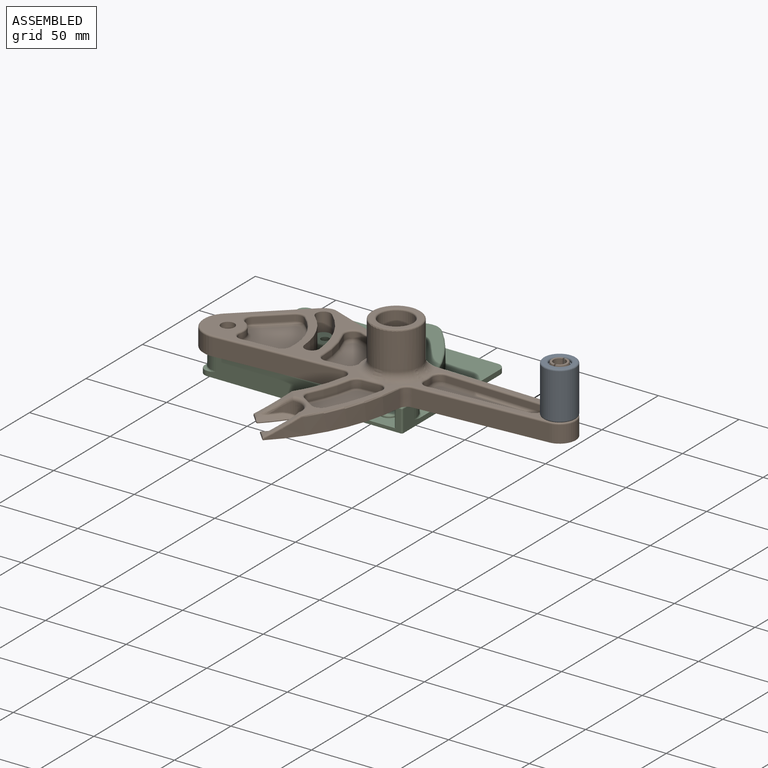
[diagram: assembled view]
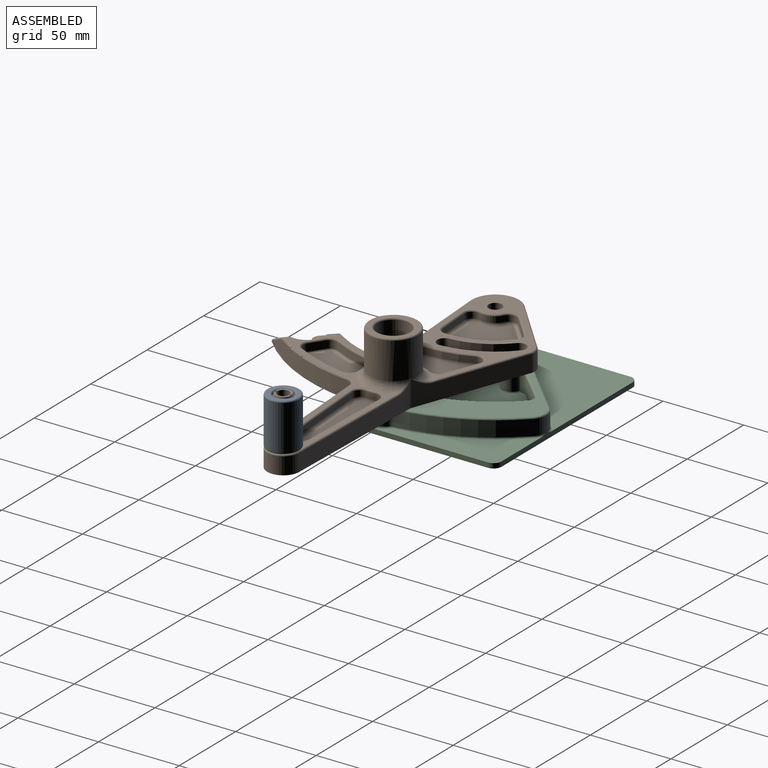
[diagram: assembled view, second angle]
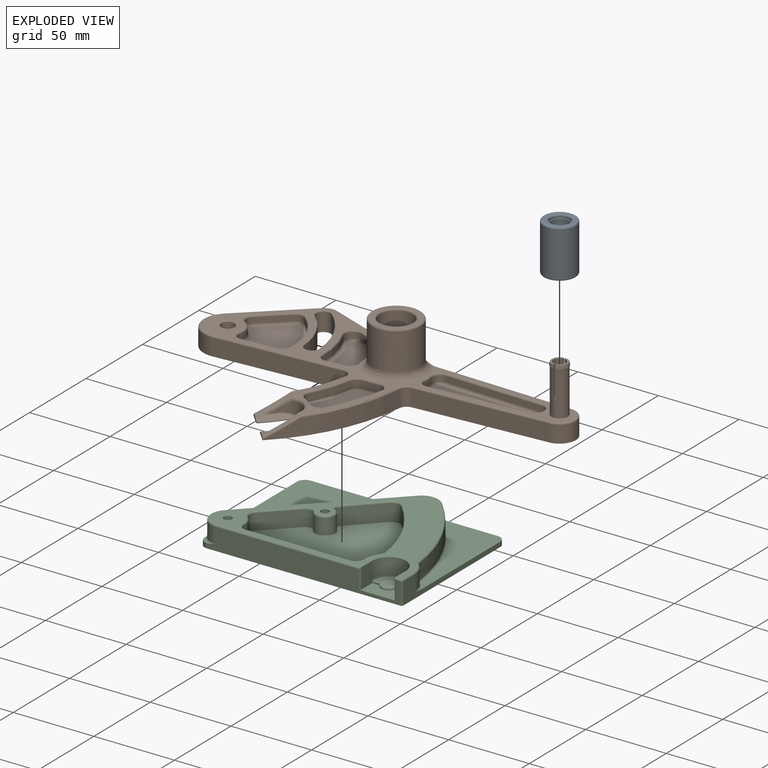
[diagram: exploded view]
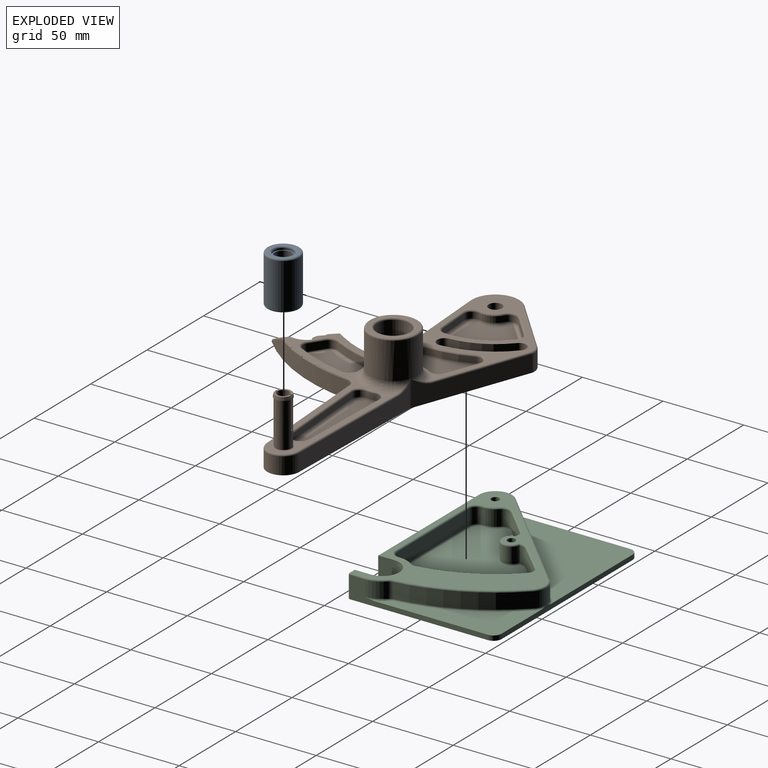
[diagram: exploded view, second angle]
ASSEMBLY  parts=3 mates=4
PART A: 10 faces, bbox 21.6x21.6x30 mm
  f0: cylinder r=5.35mm len=26.5mm, axis (0,0,-1), area 890.8mm2, adj f5,f9
  f1: cylinder r=10mm len=28mm, axis (0,0,-1), area 1759.3mm2, adj f7,f8
  f2: plane 18x18mm, normal (0,0,1), area 100.5mm2, adj f6,f8
  f3: plane 18x18mm, normal (0,0,-1), area 107.1mm2, adj f7,f9
  f4: cylinder r=6mm len=12mm, axis (0,0,1), area 37.7mm2, adj f5,f6
  f5: plane 12x12mm, normal (0,0,1), area 23.2mm2, adj f0,f4
  f6: torus R=7mm, axis (0,0,1), area 62.8mm2, adj f2,f4
  f7: torus R=9mm, axis (0,0,1), area 95.1mm2, adj f1,f3
  f8: torus R=9mm, axis (0,0,1), area 95.1mm2, adj f1,f2
  f9: cone r=6.85mm half-angle=45deg, axis (0,0,-1), area 81.3mm2, adj f0,f3
PART B: 214 faces, bbox 227.1x135.7x43.3 mm
  f0: plane 3.06x2.01mm, normal (0,0,1), area 1.7mm2, adj f171,f200,f201
  f1: plane 107.76x101.36mm, normal (0,0,1), area 1793.9mm2, adj f21,f22,f23,f26,f27,f67,f68,f69
  f2: plane 0.79x0.61mm, normal (-0.61,-0.79,0), area 0.5mm2, adj f5,f6,f28,f198
  f3: cylinder r=94.5mm len=10.51mm, axis (0,0,-1), area 7.4mm2, adj f6,f28,f196,f212
  f4: cylinder r=105.5mm len=11.87mm, axis (0,0,-1), area 8.4mm2, adj f5,f28,f200,f213
  f5: cylinder r=5mm len=7.2mm, axis (0,0,-1), area 4.1mm2, adj f2,f4,f28,f199
  f6: cylinder r=5mm len=6.85mm, axis (0,0,-1), area 3.8mm2, adj f2,f3,f28,f197
  f7: plane 7.97x6.12mm, normal (0.61,0.79,0), area 45.2mm2, adj f131,f134,f140,f150
  f8: cylinder r=90mm len=23.28mm, axis (0,0,-1), area 114.5mm2, adj f131,f132,f141,f147
  f9: plane 10.33x4.5mm, normal (0,-1,0), area 46.5mm2, adj f132,f133,f137,f143
  f10: cylinder r=110mm len=32.16mm, axis (0,0,-1), area 157.8mm2, adj f133,f134,f136,f146
  f11: plane 77.46x10.5mm, normal (0,-1,0), area 813.3mm2, adj f18,f28,f183,f194
  f12: cylinder r=5mm len=27.46mm, axis (0,0,-1), area 827.2mm2, adj f109,f110,f113,f115,f117,f120,f121,f123
  f13: plane 6.5x6.5mm, normal (0,0,1), area 33.2mm2, adj f118,f119
  f14: plane 127.49x84.87mm, normal (0,0,1), area 916.6mm2, adj f100,f101,f102,f104,f105,f106,f107,f121
  f15: plane 68.13x30.64mm, normal (0.41,0.91,0), area 811mm2, adj f16,f28,f108,f165,f166
  f16: cylinder r=9.5mm len=10.5mm, axis (0,0,-1), area 95.5mm2, adj f15,f17,f28,f167
  f17: plane 38.22x30.56mm, normal (-0.62,0.78,0), area 513.8mm2, adj f16,f18,f28,f168
  f18: cylinder r=15mm len=26.71mm, axis (0,0,-1), area 388.6mm2, adj f11,f17,f28,f195
  f19: plane 81.68x10.5mm, normal (0,-1,0), area 857.6mm2, adj f20,f28,f182,f188
  f20: cylinder r=10mm len=19.96mm, axis (0,0,-1), area 320.4mm2, adj f19,f25,f28,f189
  f21: cylinder r=4.5mm len=11.5mm, axis (0,0,-1), area 163.4mm2, adj f1,f22,f26,f28
  f22: cylinder r=45.5mm len=32.13mm, axis (0,0,-1), area 410.2mm2, adj f1,f21,f23,f28
  f23: cylinder r=4.5mm len=11.5mm, axis (0,0,-1), area 163.3mm2, adj f1,f22,f26,f28
  f24: cylinder r=10.25mm len=39mm, axis (0,0,-1), area 2511.7mm2, adj f28,f31
  f25: plane 93.92x14.43mm, normal (0.09,1,0), area 1002mm2, adj f20,f28,f108,f162,f163
  f26: cylinder r=54.5mm len=38.47mm, axis (0,0,-1), area 491.5mm2, adj f1,f21,f23,f28
  f27: cylinder r=4.15mm len=11.5mm, axis (0,0,-1), area 299.9mm2, adj f1,f28
  f28: plane 225x132.95mm, normal (0,0,-1), area 8819.7mm2, adj f2,f3,f4,f5,f6,f11,f15,f16
  f29: cylinder r=15mm len=30mm, axis (0,0,-1), area 2122.6mm2, adj f32,f151,f152,f153,f154,f155,f156,f157
  f30: plane 28x28mm, normal (0,0,1), area 218.1mm2, adj f31,f32
  f31: torus R=11.25mm, axis (0,0,1), area 104.7mm2, adj f24,f30
  f32: torus R=14mm, axis (0,0,1), area 144.5mm2, adj f29,f30
  f33: cylinder r=40.5mm len=35.2mm, axis (0,0,1), area 135.7mm2, adj f38,f41,f42,f79
  f34: plane 16.28x13.02mm, normal (0.62,-0.78,0), area 73mm2, adj f38,f39,f46,f75
  f35: cylinder r=10.15mm len=11.95mm, axis (0,0,1), area 47.9mm2, adj f39,f40,f49,f78
  f36: plane 20.85x3.5mm, normal (0,1,0), area 73mm2, adj f40,f41,f45,f82
  f37: plane 36.86x33.45mm, normal (0,0,1), area 869.3mm2, adj f42,f43,f44,f45,f46,f47,f48,f49
  f38: cylinder r=5mm len=6.55mm, axis (0,0,1), area 25mm2, adj f33,f34,f44,f77
  f39: cylinder r=5mm len=8.14mm, axis (0,0,1), area 33.4mm2, adj f34,f35,f48,f76
  f40: cylinder r=5mm len=6.65mm, axis (0,0,1), area 33.4mm2, adj f35,f36,f47,f80
  f41: cylinder r=5mm len=4.95mm, axis (0,0,1), area 25mm2, adj f33,f36,f43,f81
  f42: torus R=38.5mm, axis (0,0,1), area 119.6mm2, adj f33,f37,f43,f44
  f43: torus R=3mm, axis (0,0,1), area 19.2mm2, adj f37,f41,f42,f45
  f44: torus R=3mm, axis (0,0,1), area 19.2mm2, adj f37,f38,f42,f46
  f45: cylinder r=2mm len=20.85mm, axis (1,0,0), area 65.5mm2, adj f36,f37,f43,f47
  f46: cylinder r=2mm len=17.53mm, axis (-0.78,-0.62,0), area 65.5mm2, adj f34,f37,f44,f48
  f47: torus R=3mm, axis (0,0,1), area 25.6mm2, adj f37,f40,f45,f49
  f48: torus R=3mm, axis (0,0,1), area 25.6mm2, adj f37,f39,f46,f49
  f49: torus R=12.15mm, axis (0,0,1), area 46mm2, adj f35,f37,f47,f48
  f50: plane 19.62x8.82mm, normal (-0.41,-0.91,0), area 75.3mm2, adj f55,f58,f59,f67
  f51: cylinder r=59.5mm len=26.23mm, axis (0,0,1), area 93.6mm2, adj f55,f56,f62,f70
  f52: plane 11.2x3.5mm, normal (0,1,0), area 39.2mm2, adj f56,f57,f66,f74
  f53: cylinder r=20mm len=15.69mm, axis (0,0,1), area 57.8mm2, adj f57,f58,f63,f71
  f54: plane 34.43x25.62mm, normal (0,0,1), area 585.9mm2, adj f59,f60,f61,f62,f63,f64,f65,f66
  f55: cylinder r=5mm len=7.05mm, axis (0,0,1), area 41.4mm2, adj f50,f51,f60,f68
  f56: cylinder r=5mm len=5.39mm, axis (0,0,1), area 28.8mm2, adj f51,f52,f64,f72
  f57: cylinder r=5mm len=6mm, axis (0,0,1), area 31mm2, adj f52,f53,f65,f73
  f58: cylinder r=5mm len=7.48mm, axis (0,0,1), area 31mm2, adj f50,f53,f61,f69
  f59: cylinder r=2mm len=20.44mm, axis (-0.91,0.41,0), area 67.6mm2, adj f50,f54,f60,f61
  f60: torus R=3mm, axis (0,0,1), area 31.8mm2, adj f54,f55,f59,f62
  f61: torus R=3mm, axis (0,0,1), area 23.8mm2, adj f54,f58,f59,f63
  f62: torus R=61.5mm, axis (0,0,1), area 85mm2, adj f51,f54,f60,f64
  f63: torus R=22mm, axis (0,0,1), area 53.7mm2, adj f53,f54,f61,f65
  f64: torus R=3mm, axis (0,0,1), area 22.1mm2, adj f54,f56,f62,f66
  f65: torus R=3mm, axis (0,0,1), area 23.8mm2, adj f54,f57,f63,f66
  f66: cylinder r=2mm len=11.2mm, axis (1,0,0), area 35.2mm2, adj f52,f54,f64,f65
  f67: cylinder r=1mm len=20.03mm, axis (0.91,-0.41,0), area 33.8mm2, adj f1,f50,f68,f69
  f68: torus R=6mm, axis (0,0,1), area 19.9mm2, adj f1,f55,f67,f70
  f69: torus R=6mm, axis (0,0,1), area 14.7mm2, adj f1,f58,f67,f71,f154
  f70: torus R=58.5mm, axis (0,0,1), area 41.7mm2, adj f1,f51,f68,f72
  f71: torus R=19mm, axis (0,0,1), area 22.8mm2, adj f53,f69,f73,f152
  f72: torus R=6mm, axis (0,0,1), area 13.9mm2, adj f1,f56,f70,f74
  f73: torus R=6mm, axis (0,0,1), area 14.7mm2, adj f1,f57,f71,f74,f151
  f74: cylinder r=1mm len=11.2mm, axis (-1,0,0), area 17.6mm2, adj f1,f52,f72,f73
  f75: cylinder r=1mm len=16.9mm, axis (0.78,0.62,0), area 32.7mm2, adj f1,f34,f76,f77
  f76: torus R=6mm, axis (0,0,1), area 16.1mm2, adj f1,f39,f75,f78
  f77: torus R=6mm, axis (0,0,1), area 12mm2, adj f1,f38,f75,f79
  f78: torus R=9.15mm, axis (0,0,1), area 20.7mm2, adj f1,f35,f76,f80
  f79: torus R=41.5mm, axis (0,0,1), area 61.4mm2, adj f1,f33,f77,f81
  f80: torus R=6mm, axis (0,0,1), area 16.1mm2, adj f1,f40,f78,f82
  f81: torus R=6mm, axis (0,0,1), area 12mm2, adj f1,f41,f79,f82
  f82: cylinder r=1mm len=20.85mm, axis (-1,0,0), area 32.7mm2, adj f1,f36,f80,f81
  f83: cylinder r=20mm len=5.53mm, axis (0,0,1), area 19.4mm2, adj f88,f91,f95,f103
  f84: plane 60.51x3.5mm, normal (0,1,0), area 211.8mm2, adj f88,f89,f99,f107
  f85: cylinder r=10mm len=3.5mm, axis (0,0,1), area 3.2mm2, adj f89,f90,f96,f104
  f86: plane 60.14x5.54mm, normal (-0.09,-1,0), area 211.4mm2, adj f90,f91,f92,f100
  f87: plane 66.57x12.91mm, normal (0,0,1), area 665.4mm2, adj f92,f93,f94,f95,f96,f97,f98,f99
  f88: cylinder r=5mm len=6mm, axis (0,0,1), area 31mm2, adj f83,f84,f97,f105
  f89: cylinder r=5mm len=5mm, axis (0,0,1), area 27.5mm2, adj f84,f85,f98,f106
  f90: cylinder r=5mm len=5.44mm, axis (0,0,1), area 27.5mm2, adj f85,f86,f94,f102
  f91: cylinder r=5mm len=5.46mm, axis (0,0,1), area 30.4mm2, adj f83,f86,f93,f101
  f92: cylinder r=2mm len=60.32mm, axis (-1,0.09,0), area 189.7mm2, adj f86,f87,f93,f94
  f93: torus R=3mm, axis (0,0,1), area 23.3mm2, adj f87,f91,f92,f95
  f94: torus R=3mm, axis (0,0,1), area 21.1mm2, adj f87,f90,f92,f96
  f95: torus R=22mm, axis (0,0,1), area 18.1mm2, adj f83,f87,f93,f97
  f96: torus R=12mm, axis (0,0,1), area 3.1mm2, adj f85,f87,f94,f98
  f97: torus R=3mm, axis (0,0,1), area 23.8mm2, adj f87,f88,f95,f99
  f98: torus R=3mm, axis (0,0,1), area 21.1mm2, adj f87,f89,f96,f99
  f99: cylinder r=2mm len=60.51mm, axis (1,0,0), area 190.1mm2, adj f84,f87,f97,f98
  f100: cylinder r=1mm len=60.23mm, axis (1,-0.09,0), area 94.9mm2, adj f14,f86,f101,f102
  f101: torus R=6mm, axis (0,0,1), area 14.4mm2, adj f14,f91,f100,f103,f158
  f102: torus R=6mm, axis (0,0,1), area 13.2mm2, adj f14,f90,f100,f104
  f103: torus R=19mm, axis (0,0,1), area 7.7mm2, adj f83,f101,f105,f160
  f104: torus R=9mm, axis (0,0,1), area 1.4mm2, adj f14,f85,f102,f106
  f105: torus R=6mm, axis (0,0,1), area 14.7mm2, adj f14,f88,f103,f107,f161
  f106: torus R=6mm, axis (0,0,1), area 13.2mm2, adj f14,f89,f104,f107
  f107: cylinder r=1mm len=60.51mm, axis (-1,0,0), area 95mm2, adj f14,f84,f105,f106
  f108: cylinder r=5mm len=15.95mm, axis (0,0,-1), area 25.1mm2, adj f15,f25,f28,f164
  f109: plane 19.5x1.65mm, normal (-1,0,0), area 24.9mm2, adj f12,f111,f112,f117,f122,f123
  f110: plane 19.5x1.26mm, normal (-1,0,0), area 24.5mm2, adj f12,f111,f112,f120,f124
  f111: cylinder r=3.75mm len=19.5mm, axis (0,0,-1), area 210.2mm2, adj f109,f110,f112,f119
  f112: plane 9.95x4.5mm, normal (0,0,1), area 15.9mm2, adj f109,f110,f111,f122
  f113: plane 19.5x1.65mm, normal (1,0,0), area 24.9mm2, adj f12,f114,f116,f117,f125,f126
  f114: cylinder r=3.75mm len=19.5mm, axis (0,0,-1), area 210.2mm2, adj f113,f115,f116,f118
  f115: plane 19.5x1.26mm, normal (1,0,0), area 24.5mm2, adj f12,f114,f116,f120,f127
  f116: plane 9.95x4.5mm, normal (0,0,1), area 15.9mm2, adj f113,f114,f115,f125
  f117: cylinder r=0.5mm len=1.75mm, axis (0,1,0), area 2.4mm2, adj f12,f109,f113,f118,f119
  f118: torus R=3.25mm, axis (0,0,1), area 8.4mm2, adj f13,f114,f117,f120
  f119: torus R=3.25mm, axis (0,0,1), area 8.4mm2, adj f13,f111,f117,f120
  f120: cylinder r=0.5mm len=1.75mm, axis (0,1,0), area 2.4mm2, adj f12,f110,f115,f118,f119
  f121: torus R=5.5mm, axis (0,0,1), area 25.6mm2, adj f12,f14
  f122: revolved ~10.73x4.89mm, area 30.6mm2, adj f109,f112,f123,f124
  f123: revolved ~10.73x4.89mm, area 6.1mm2, adj f12,f109,f122,f124
  f124: plane 2.04x0.39mm, normal (-0.98,0.2,0), area 0.4mm2, adj f110,f122,f123
  f125: revolved ~10.73x4.89mm, area 30.6mm2, adj f113,f116,f126,f127
  f126: revolved ~10.73x4.89mm, area 6.1mm2, adj f12,f113,f125,f127
  f127: plane 2.04x0.39mm, normal (0.98,0.2,0), area 0.4mm2, adj f115,f125,f126
  f128: cylinder r=115mm len=68.93mm, axis (0,0,-1), area 747.7mm2, adj f28,f170,f182,f185,f186
  f129: cylinder r=85mm len=43.86mm, axis (0,0,-1), area 451.2mm2, adj f28,f169,f183,f191,f192
  f130: plane 38.7x28.94mm, normal (0,0,1), area 674.7mm2, adj f143,f144,f145,f146,f147,f148,f149,f150
  f131: cylinder r=5mm len=6.58mm, axis (0,0,-1), area 33mm2, adj f7,f8,f142,f149
  f132: cylinder r=5mm len=4.82mm, axis (0,0,-1), area 29.4mm2, adj f8,f9,f139,f145
  f133: cylinder r=5mm len=6.19mm, axis (0,0,-1), area 40.8mm2, adj f9,f10,f135,f144
  f134: cylinder r=5mm len=7.28mm, axis (0,0,-1), area 37.5mm2, adj f7,f10,f138,f148
  f135: torus R=6mm, axis (0,0,1), area 15.1mm2, adj f14,f133,f136,f137,f157
  f136: torus R=111mm, axis (0,0,1), area 55.3mm2, adj f10,f14,f135,f138
  f137: cylinder r=1mm len=10.33mm, axis (-1,0,0), area 15.2mm2, adj f1,f9,f135,f139,f155
  f138: torus R=6mm, axis (0,0,1), area 14mm2, adj f14,f134,f136,f140
  f139: torus R=6mm, axis (0,0,1), area 11mm2, adj f1,f132,f137,f141
  f140: cylinder r=1mm len=8.58mm, axis (0.79,-0.61,0), area 15.8mm2, adj f1,f7,f14,f138,f142
  f141: torus R=89mm, axis (0,0,1), area 39.8mm2, adj f1,f8,f139,f142
  f142: torus R=6mm, axis (0,0,1), area 12.3mm2, adj f1,f131,f140,f141
  f143: cylinder r=1mm len=10.33mm, axis (1,0,0), area 16.2mm2, adj f9,f130,f144,f145
  f144: torus R=4mm, axis (0,0,-1), area 13.2mm2, adj f130,f133,f143,f146
  f145: torus R=4mm, axis (0,0,-1), area 9.5mm2, adj f130,f132,f143,f147
  f146: torus R=109mm, axis (0,0,-1), area 54.9mm2, adj f10,f130,f144,f148
  f147: torus R=91mm, axis (0,0,-1), area 40.1mm2, adj f8,f130,f145,f149
  f148: torus R=4mm, axis (0,0,-1), area 12.1mm2, adj f130,f134,f146,f150
  f149: torus R=4mm, axis (0,0,-1), area 10.7mm2, adj f130,f131,f147,f150
  f150: cylinder r=1mm len=8.58mm, axis (-0.79,0.61,0), area 15.8mm2, adj f7,f130,f148,f149
  f151: bspline ~5.8x5.8mm, area 18mm2, adj f29,f73,f152,f153
  f152: torus R=20mm, axis (0,0,1), area 95.5mm2, adj f29,f71,f151,f154
  f153: torus R=20mm, axis (0,0,1), area 119.3mm2, adj f1,f29,f151,f155
  f154: bspline ~6.03x5.48mm, area 18mm2, adj f29,f69,f152,f156
  f155: bspline ~11.88x5.63mm, area 50.3mm2, adj f29,f137,f153,f157
  f156: torus R=20mm, axis (0,0,1), area 194.1mm2, adj f1,f14,f29,f154,f158,f163,f164,f165
  f157: bspline ~5.8x5.72mm, area 14.7mm2, adj f29,f135,f155,f159
  f158: bspline ~5.8x5.73mm, area 18mm2, adj f29,f101,f156,f160
  f159: torus R=20mm, axis (0,0,1), area 132mm2, adj f14,f29,f157,f161
  f160: torus R=20mm, axis (0,0,1), area 32.1mm2, adj f29,f103,f158,f161
  f161: bspline ~5.33x5.04mm, area 18mm2, adj f29,f105,f159,f160
  f162: cylinder r=1mm len=84.72mm, axis (1,-0.09,0), area 133.5mm2, adj f14,f25,f163,f189
  f163: bspline ~10.77x4.75mm, area 10.8mm2, adj f25,f156,f162,f164
  f164: bspline ~2.91x2.43mm, area 0.7mm2, adj f108,f156,f163,f165
  f165: bspline ~14.91x6.57mm, area 12.5mm2, adj f15,f156,f164,f166
  f166: cylinder r=1mm len=56.27mm, axis (0.91,-0.41,0), area 96.1mm2, adj f1,f15,f165,f167
  f167: torus R=8.5mm, axis (0,0,1), area 13.7mm2, adj f1,f16,f166,f168
  f168: cylinder r=1mm len=38.87mm, axis (0.78,0.62,0), area 76.9mm2, adj f1,f17,f167,f195
  f169: plane 6.52x5.48mm, normal (-0.77,-0.64,0), area 7.5mm2, adj f28,f129,f190,f191,f196,f212
  f170: plane 6.53x5.48mm, normal (-0.77,-0.64,0), area 7.4mm2, adj f28,f128,f184,f185,f213
  f171: plane 17.06x16.48mm, normal (-0.34,-0.29,0.89), area 48.7mm2, adj f0,f14,f179,f180,f181,f184,f185,f200
  f172: plane 18.36x17mm, normal (-0.34,-0.29,0.89), area 56.5mm2, adj f1,f176,f177,f178,f179,f190,f191,f192
  f173: cylinder r=110mm len=5.79mm, axis (0,0,1), area 16.5mm2, adj f174,f181,f203
  f174: cylinder r=10mm len=17.42mm, axis (0,0,1), area 202mm2, adj f173,f175,f178,f179,f180,f204,f205,f206
  f175: cylinder r=90mm len=3.63mm, axis (0,0,1), area 6.1mm2, adj f174,f177,f209
  f176: plane 3.28x1.91mm, normal (0,0,1), area 1.8mm2, adj f172,f196,f211
  f177: bspline ~17.01x16.6mm, area 28.4mm2, adj f172,f175,f178,f210,f211
  f178: bspline ~8.84x6.12mm, area 26.7mm2, adj f172,f174,f177,f179
  f179: torus R=12mm, axis (0,0,1), area 67.3mm2, adj f1,f14,f171,f172,f174,f178,f180
  f180: bspline ~6.15x4.47mm, area 16.1mm2, adj f171,f174,f179,f181
  f181: bspline ~11.27x10.3mm, area 37.6mm2, adj f171,f173,f180,f201,f202
  f182: cylinder r=5mm len=10.5mm, axis (0,0,-1), area 73.7mm2, adj f19,f28,f128,f187
  f183: cylinder r=5mm len=10.5mm, axis (0,0,-1), area 95.7mm2, adj f11,f28,f129,f193
  f184: cylinder r=1mm len=6.78mm, axis (0.64,-0.77,0), area 7.5mm2, adj f170,f171,f185,f200
  f185: bspline ~20.28x20.23mm, area 36.3mm2, adj f14,f128,f170,f171,f184,f186
  f186: torus R=114mm, axis (0,0,1), area 95mm2, adj f14,f128,f185,f187
  f187: torus R=6mm, axis (0,0,1), area 11.8mm2, adj f14,f182,f186,f188
  f188: cylinder r=1mm len=81.68mm, axis (-1,0,0), area 128.3mm2, adj f14,f19,f187,f189
  f189: torus R=9mm, axis (0,0,1), area 46.2mm2, adj f14,f20,f162,f188
  f190: cylinder r=1mm len=6.77mm, axis (0.64,-0.77,0), area 7.5mm2, adj f169,f172,f191,f196
  f191: bspline ~15.9x14.45mm, area 33.8mm2, adj f129,f169,f172,f190,f192
  f192: torus R=86mm, axis (0,0,1), area 51.5mm2, adj f1,f129,f172,f191,f193
  f193: torus R=6mm, axis (0,0,1), area 15.4mm2, adj f1,f183,f192,f194
  f194: cylinder r=1mm len=77.46mm, axis (-1,0,0), area 121.7mm2, adj f1,f11,f193,f195
  f195: torus R=14mm, axis (0,0,1), area 56.7mm2, adj f1,f18,f168,f194
  f196: cone r=90.5mm half-angle=69.4deg, axis (0,0,-1), area 63.4mm2, adj f3,f169,f172,f176,f190,f197,f208,f209
  f197: cone r=9mm half-angle=69.4deg, axis (0,0,1), area 19.5mm2, adj f6,f196,f198,f207
  f198: bspline ~3.78x3.23mm, area 1.4mm2, adj f2,f197,f199,f206
  f199: bspline ~11.93x5.23mm, area 19.3mm2, adj f5,f198,f200,f205
  f200: bspline ~17.15x16.89mm, area 72.8mm2, adj f0,f4,f171,f184,f199,f201,f202,f203
  f201: bspline ~4.97x2.41mm, area 3.2mm2, adj f0,f171,f181,f200,f202
  f202: bspline ~3.81x3.77mm, area 2.7mm2, adj f181,f200,f201,f203
  f203: bspline ~12.27x12.24mm, area 9.8mm2, adj f173,f200,f202,f204
  f204: bspline ~5.66x3.3mm, area 4.4mm2, adj f174,f200,f203,f205
  f205: bspline ~13.94x5.01mm, area 14.5mm2, adj f174,f199,f204,f206
  f206: bspline ~1.58x1.43mm, area 1.3mm2, adj f174,f198,f205,f207
  f207: bspline ~12.96x3.79mm, area 13.8mm2, adj f174,f197,f206,f208
  f208: bspline ~3.89x3.27mm, area 3.6mm2, adj f174,f196,f207,f209
  f209: torus R=91mm, axis (0,0,1), area 6.1mm2, adj f175,f196,f208,f210
  f210: bspline ~3.88x3.61mm, area 2.8mm2, adj f177,f196,f209,f211
  f211: bspline ~5.36x2.26mm, area 3.3mm2, adj f172,f176,f177,f196,f210
  f212: cylinder r=1mm len=1.42mm, axis (0,0,-1), area 1.1mm2, adj f3,f28,f169,f196
  f213: cylinder r=1mm len=1.4mm, axis (0,0,-1), area 1.1mm2, adj f4,f28,f170,f200
PART C: 100 faces, bbox 132.8x98.5x14.7 mm
  f0: plane 19x9.5mm, normal (0,0,1), area 102.5mm2, adj f42,f45,f83
  f1: plane 0.99x0.01mm, normal (0,0,-1), area 0mm2, adj f17,f34
  f2: cylinder r=5mm len=9.5mm, axis (0,0,-1), area 58.3mm2, adj f3,f28,f49,f88
  f3: cylinder r=6mm len=11.87mm, axis (0,0,-1), area 238.3mm2, adj f2,f4,f48,f90
  f4: cylinder r=5mm len=10.5mm, axis (0,0,-1), area 51.1mm2, adj f3,f5,f41,f48,f92
  f5: plane 18.07x17.55mm, normal (0.72,-0.7,0), area 264.5mm2, adj f4,f6,f41,f94
  f6: cylinder r=5mm len=10.5mm, axis (0,0,-1), area 83.6mm2, adj f5,f7,f41,f59,f96
  f7: cylinder r=10.55mm len=9.83mm, axis (0,0,-1), area 13.1mm2, adj f6,f8,f59,f98
  f8: cylinder r=89.5mm len=49.51mm, axis (0,0,-1), area 533.6mm2, adj f7,f9,f59,f99
  f9: cylinder r=5mm len=9.5mm, axis (0,0,-1), area 37.5mm2, adj f8,f10,f58,f97
  f10: cylinder r=15.5mm len=9.5mm, axis (0,0,-1), area 94.8mm2, adj f9,f11,f57,f95
  f11: plane 9.5x0.5mm, normal (-1,0,0), area 4.7mm2, adj f10,f12,f56,f93
  f12: cylinder r=5mm len=9.5mm, axis (0,0,-1), area 74.6mm2, adj f11,f13,f55,f91
  f13: plane 64.01x9.5mm, normal (0,1,0), area 608.1mm2, adj f12,f14,f54,f89
  f14: cylinder r=5mm len=9.5mm, axis (0,0,-1), area 76.1mm2, adj f13,f15,f53,f87
  f15: cylinder r=10.5mm len=9.5mm, axis (0,0,-1), area 84.8mm2, adj f14,f16,f52,f85
  f16: cylinder r=5mm len=9.5mm, axis (0,0,-1), area 76.1mm2, adj f15,f28,f51,f84
  f17: cylinder r=10.55mm len=15.6mm, axis (0,0,-1), area 168mm2, adj f1,f18,f29,f34,f71,f73,f80
  f18: plane 70.59x70.53mm, normal (-0.71,0.71,0), area 948mm2, adj f17,f19,f69,f79
  f19: cylinder r=10.5mm len=18.07mm, axis (0,0,-1), area 240.4mm2, adj f18,f23,f67,f77,f78,f81,f82
  f20: plane 12.5x9.5mm, normal (1,0,0), area 118.8mm2, adj f21,f31,f45,f46,f63
  f21: cylinder r=10.5mm len=21mm, axis (0,0,-1), area 346.4mm2, adj f20,f22,f31,f83
  f22: plane 12.5x9.5mm, normal (-1,0,0), area 118.8mm2, adj f21,f31,f45,f46,f60
  f23: plane 120.2x13.7mm, normal (0,-1,0), area 1299.6mm2, adj f19,f32,f36,f39,f46,f60,f61,f62
  f24: plane 85.92x13.68mm, normal (1,0,0), area 359.2mm2, adj f25,f32,f35,f40,f61,f66,f76
  f25: cylinder r=15.5mm len=10.88mm, axis (0,0,-1), area 114.6mm2, adj f24,f26,f68,f76
  f26: cylinder r=5mm len=9.5mm, axis (0,0,-1), area 31mm2, adj f25,f29,f70,f75
  f27: cylinder r=2.5mm len=14.5mm, axis (0,0,-1), area 227.8mm2, adj f31,f32
  f28: plane 17.32x17.3mm, normal (0.71,-0.71,0), area 232.6mm2, adj f2,f16,f50,f86
  f29: cylinder r=110.5mm len=63.65mm, axis (0,0,-1), area 683.8mm2, adj f17,f26,f72,f74
  f30: cylinder r=2.5mm len=14.5mm, axis (0,0,-1), area 227.8mm2, adj f31,f32
  f31: plane 124x89.75mm, normal (0,0,1), area 2541.2mm2, adj f20,f21,f22,f27,f30,f62,f65,f66
  f32: plane 126x91.74mm, normal (0,0,-1), area 11503.4mm2, adj f23,f24,f27,f30,f33,f34,f35,f36
  f33: cylinder r=5mm len=5mm, axis (0,0,1), area 23.6mm2, adj f32,f34,f37,f38
  f34: plane 116.14x4.14mm, normal (0,1,0), area 350.9mm2, adj f1,f17,f32,f33,f35,f38,f40,f73
  f35: cylinder r=5mm len=5mm, axis (0,0,1), area 23.6mm2, adj f24,f32,f34,f40
  f36: cylinder r=5mm len=5mm, axis (0,0,1), area 23.6mm2, adj f23,f32,f37,f39
  f37: plane 81.74x3mm, normal (-1,0,0), area 245.2mm2, adj f32,f33,f36,f38,f39,f77,f82
  f38: plane 76.55x76.48mm, normal (0,0,1), area 2842.2mm2, adj f33,f34,f37,f78,f79,f80
  f39: plane 5.81x5.81mm, normal (0,0,1), area 7.3mm2, adj f23,f36,f37,f81
  f40: plane 75.58x40.06mm, normal (0,0,1), area 1162.1mm2, adj f24,f34,f35,f73,f74,f75,f76
  f41: plane 81x69.53mm, normal (0,0,1), area 3522.4mm2, adj f4,f5,f6,f48,f49,f50,f51,f52
  f42: cylinder r=5mm len=10mm, axis (0,0,-1), area 15.7mm2, adj f0,f44,f47
  f43: plane 8x8mm, normal (0,0,1), area 50.3mm2, adj f47
  f44: plane 10x5mm, normal (0,0,-1), area 39.3mm2, adj f42,f45
  f45: plane 21x2mm, normal (0,-1,0), area 21.4mm2, adj f0,f20,f22,f44,f46,f83
  f46: plane 23x10.5mm, normal (0,0,1), area 220.9mm2, adj f20,f22,f23,f45,f60,f63
  f47: torus R=4mm, axis (0,0,1), area 45.8mm2, adj f42,f43
  f48: torus R=7mm, axis (0,0,1), area 41.7mm2, adj f3,f4,f41,f49
  f49: torus R=4mm, axis (0,0,1), area 8.7mm2, adj f2,f41,f48,f50
  f50: cylinder r=1mm len=18.03mm, axis (0.71,0.71,0), area 38.5mm2, adj f28,f41,f49,f51
  f51: torus R=4mm, axis (0,0,1), area 11.7mm2, adj f16,f41,f50,f52
  f52: torus R=11.5mm, axis (0,0,1), area 14.5mm2, adj f15,f41,f51,f53
  f53: torus R=4mm, axis (0,0,1), area 11.7mm2, adj f14,f41,f52,f54
  f54: cylinder r=1mm len=64.01mm, axis (-1,0,0), area 100.5mm2, adj f13,f41,f53,f55
  f55: torus R=4mm, axis (0,0,1), area 11.4mm2, adj f12,f41,f54,f56
  f56: cylinder r=1mm len=1mm, axis (0,-1,0), area 0.8mm2, adj f11,f41,f55,f57
  f57: torus R=16.5mm, axis (0,0,1), area 16mm2, adj f10,f41,f56,f58
  f58: torus R=4mm, axis (0,0,1), area 5.8mm2, adj f9,f41,f57,f59
  f59: torus R=88.5mm, axis (0,0,1), area 92.1mm2, adj f6,f7,f8,f41,f58
  f60: cylinder r=1mm len=12.5mm, axis (0,0,-1), area 19.1mm2, adj f22,f23,f46,f62
  f61: cylinder r=1mm len=13.5mm, axis (0,0,1), area 21.2mm2, adj f23,f24,f32,f64
  f62: cylinder r=1mm len=4mm, axis (-1,0,0), area 5.7mm2, adj f23,f31,f60,f64
  f63: cylinder r=1mm len=12.5mm, axis (0,0,1), area 19.1mm2, adj f20,f23,f46,f65
  f64: sphere r=1mm, area 1.6mm2, adj f61,f62,f66
  f65: cylinder r=1mm len=89.5mm, axis (-1,0,0), area 140mm2, adj f23,f31,f63,f67
  f66: cylinder r=1mm len=9.5mm, axis (0,-1,0), area 14.9mm2, adj f24,f31,f64,f68
  f67: torus R=9.5mm, axis (0,0,1), area 37.8mm2, adj f19,f31,f65,f69
  f68: torus R=14.5mm, axis (0,0,1), area 18.5mm2, adj f25,f31,f66,f70
  f69: cylinder r=1mm len=71.31mm, axis (0.71,0.71,0), area 156.8mm2, adj f18,f31,f67,f71
  f70: torus R=6mm, axis (0,0,1), area 5.5mm2, adj f26,f31,f68,f72
  f71: torus R=9.55mm, axis (0,0,1), area 26.7mm2, adj f17,f31,f69,f72
  f72: torus R=109.5mm, axis (0,0,1), area 112.7mm2, adj f29,f31,f70,f71
  f73: torus R=11.55mm, axis (0,0,1), area 11mm2, adj f17,f34,f40,f74
  f74: torus R=111.5mm, axis (0,0,1), area 113.4mm2, adj f29,f40,f73,f75
  f75: torus R=4mm, axis (0,0,1), area 4.8mm2, adj f26,f40,f74,f76
  f76: torus R=16.5mm, axis (0,0,1), area 15mm2, adj f24,f25,f40,f75
  f77: bspline ~4.94x1.11mm, area 3.3mm2, adj f19,f37,f78
  f78: torus R=11.5mm, axis (0,0,1), area 6.6mm2, adj f19,f38,f77,f79
  f79: cylinder r=1mm len=71.3mm, axis (-0.71,-0.71,0), area 156.7mm2, adj f18,f38,f78,f80
  f80: torus R=11.55mm, axis (0,0,1), area 9.4mm2, adj f17,f34,f38,f79
  f81: torus R=11.5mm, axis (0,0,1), area 16mm2, adj f19,f23,f39,f82
  f82: bspline ~4.94x1.11mm, area 3.3mm2, adj f19,f37,f81
  f83: torus R=9.5mm, axis (0,0,1), area 50mm2, adj f0,f21,f45
  f84: torus R=6mm, axis (0,0,1), area 13.5mm2, adj f16,f31,f85,f86
  f85: torus R=9.5mm, axis (0,0,1), area 13.5mm2, adj f15,f31,f84,f87
  f86: cylinder r=1mm len=18.03mm, axis (-0.71,-0.71,0), area 38.5mm2, adj f28,f31,f84,f88
  f87: torus R=6mm, axis (0,0,1), area 13.5mm2, adj f14,f31,f85,f89
  f88: torus R=6mm, axis (0,0,1), area 10.7mm2, adj f2,f31,f86,f90
  f89: cylinder r=1mm len=64.01mm, axis (1,0,0), area 100.5mm2, adj f13,f31,f87,f91
  f90: torus R=5mm, axis (0,0,1), area 37.7mm2, adj f3,f31,f88,f92
  f91: torus R=6mm, axis (0,0,1), area 13.2mm2, adj f12,f31,f89,f93
  f92: torus R=6mm, axis (0,0,1), area 8.6mm2, adj f4,f31,f90,f94
  f93: cylinder r=1mm len=1mm, axis (0,1,0), area 0.8mm2, adj f11,f31,f91,f95
  f94: cylinder r=1mm len=18.77mm, axis (-0.7,-0.72,0), area 39.6mm2, adj f5,f31,f92,f96
  f95: torus R=14.5mm, axis (0,0,1), area 15.3mm2, adj f10,f31,f93,f97
  f96: torus R=6mm, axis (0,0,1), area 13.6mm2, adj f6,f31,f94,f98
  f97: torus R=6mm, axis (0,0,1), area 6.7mm2, adj f9,f31,f95,f99
  f98: torus R=9.55mm, axis (0,0,1), area 2.1mm2, adj f7,f31,f96,f99
  f99: torus R=90.5mm, axis (0,0,1), area 88.6mm2, adj f8,f31,f97,f98
PLACE A rot(axis=(0,0,1),156.5deg) t=(228.35,-20.42,11.5)mm
PLACE B rot(axis=(0,0,1),3.8deg) t=(28.38,-29.05,0)mm
PLACE C t=(28.38,-29.05,-11.5)mm fixed
MATE planar C.f31 <-> B.f28  axis (0,0,1) through (93.96,2.24,0)mm
MATE planar A.f3 <-> B.f1  axis (0,0,-1) through (228.15,-20.88,11.5)mm
MATE cylindrical B.f12 <-> A.f1  axis (0,0,1) through (228.27,-20.61,11.5)mm
MATE revolute B.f26 <-> C.f8  axis (0,0,-1) through (28.38,-29.05,0)mm
